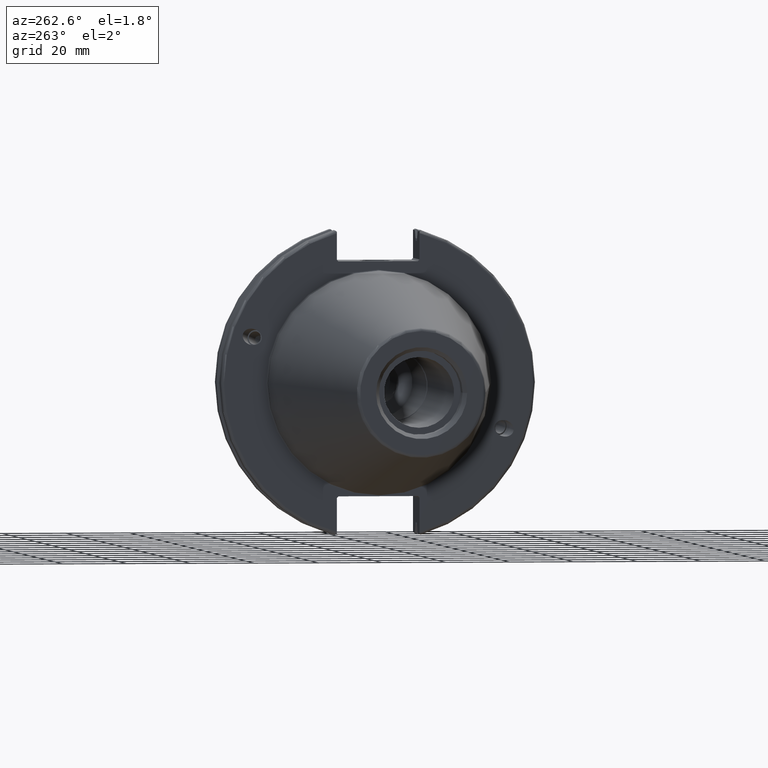
[diagram: clean part render]
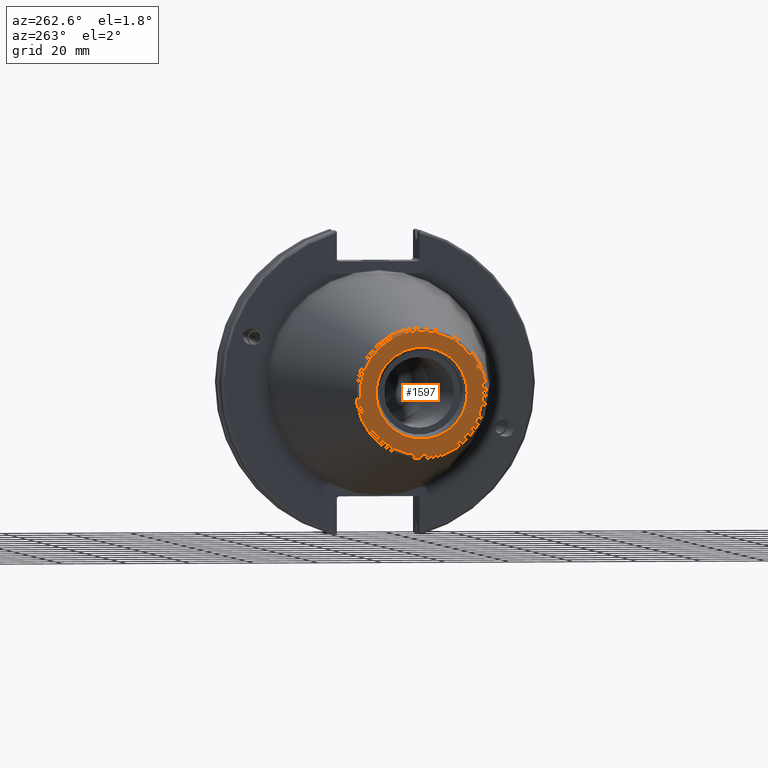
[diagram: same view with one face highlighted and labeled with its STEP entity id]
A machine part, auxiliary view. The second image highlights one B-rep face of the part: STEP entity #1597.
In plain terms, the highlighted planar face has unit normal (-1, 0, 0).
Its self-contained STEP definition (entity closure, byte-faithful):
#51=PLANE('',#1783);
#96=FACE_BOUND('',#345,.T.);
#233=FACE_OUTER_BOUND('',#344,.T.);
#344=EDGE_LOOP('',(#1386));
#345=EDGE_LOOP('',(#1387));
#639=CIRCLE('',#1782,19.2435889303637);
#640=CIRCLE('',#1784,14.2875);
#801=VERTEX_POINT('',#3159);
#802=VERTEX_POINT('',#3163);
#1014=EDGE_CURVE('',#801,#801,#639,.T.);
#1015=EDGE_CURVE('',#802,#802,#640,.T.);
#1386=ORIENTED_EDGE('',*,*,#1014,.F.);
#1387=ORIENTED_EDGE('',*,*,#1015,.T.);
#1597=ADVANCED_FACE('',(#233,#96),#51,.T.);
#1782=AXIS2_PLACEMENT_3D('',#3161,#2173,#2174);
#1783=AXIS2_PLACEMENT_3D('',#3162,#2175,#2176);
#1784=AXIS2_PLACEMENT_3D('',#3164,#2177,#2178);
#2173=DIRECTION('center_axis',(1.,0.,0.));
#2174=DIRECTION('ref_axis',(0.,-1.,1.83697019872103E-16));
#2175=DIRECTION('center_axis',(-1.,0.,0.));
#2176=DIRECTION('ref_axis',(0.,0.,1.));
#2177=DIRECTION('center_axis',(1.,0.,0.));
#2178=DIRECTION('ref_axis',(0.,0.,-1.));
#3159=CARTESIAN_POINT('',(-101.6,-2.35665995876774E-15,19.2435889303637));
#3161=CARTESIAN_POINT('Origin',(-101.6,0.,0.));
#3162=CARTESIAN_POINT('Origin',(-101.6,20.1083333333333,0.));
#3163=CARTESIAN_POINT('',(-101.6,-14.2875,-1.74971411428178E-15));
#3164=CARTESIAN_POINT('Origin',(-101.6,0.,0.));